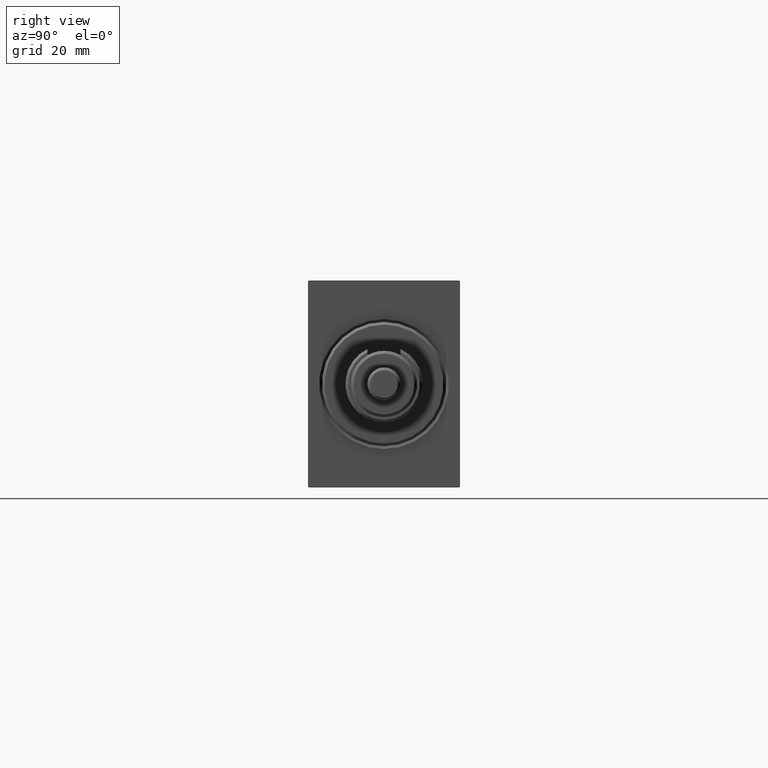
[diagram: clean part render]
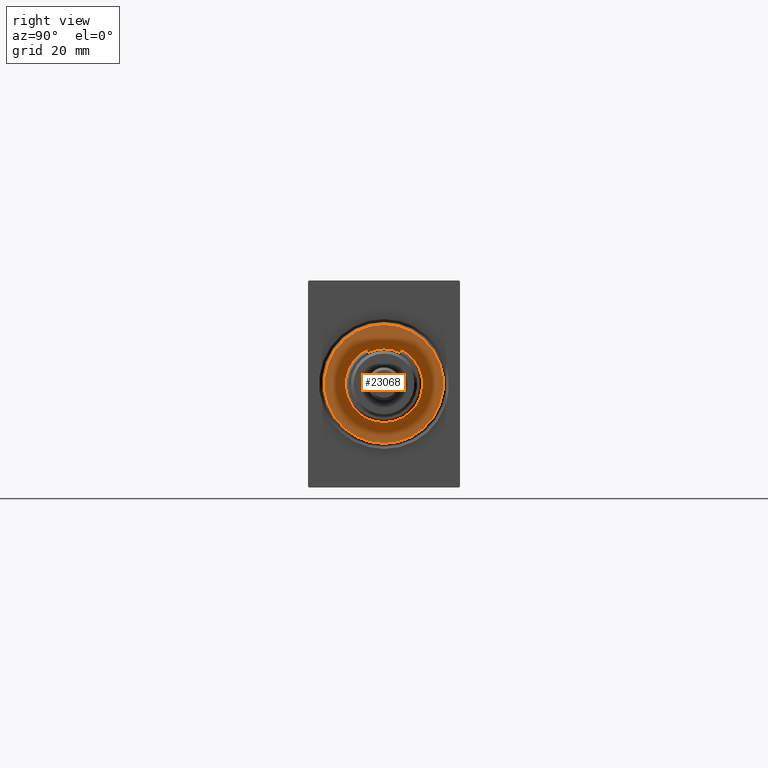
[diagram: same view with one face highlighted and labeled with its STEP entity id]
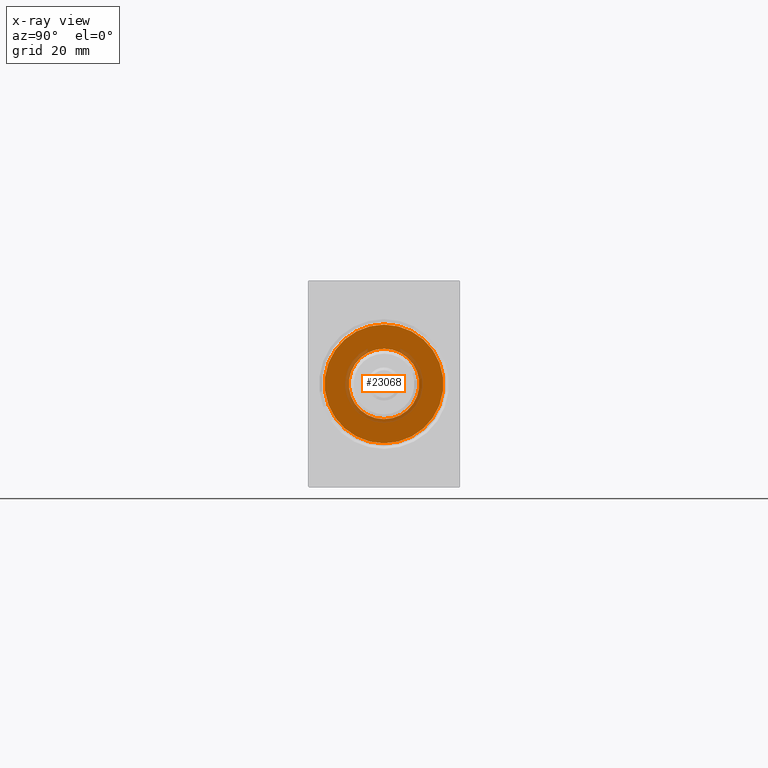
[diagram: x-ray of the same camera — body ghosted, the highlighted face saturated]
A machine part, right view. The second image highlights one B-rep face of the part: STEP entity #23068.
The next image is the same camera in x-ray: the body ghosted, the highlighted face saturated — about 9% of this face is hidden behind the body in this view.
In plain terms, the highlighted planar face has unit normal (1, 0, 0).
Its self-contained STEP definition (entity closure, byte-faithful):
#876 = EDGE_CURVE ( 'NONE', #2817, #26963, #32642, .T. ) ;
#2817 = VERTEX_POINT ( 'NONE', #8684 ) ;
#3349 = AXIS2_PLACEMENT_3D ( 'NONE', #24300, #45081, #38400 ) ;
#5936 = DIRECTION ( 'NONE',  ( 0.000000000000000000, 0.000000000000000000, -1.000000000000000000 ) ) ;
#6956 = CIRCLE ( 'NONE', #35713, 12.75000000000000000 ) ;
#7460 = EDGE_CURVE ( 'NONE', #28525, #31789, #6956, .T. ) ;
#8570 = EDGE_LOOP ( 'NONE', ( #17446, #38001 ) ) ;
#8684 = CARTESIAN_POINT ( 'NONE',  ( 3.000000000000000000, 2.694222958124177204E-15, -21.50000000000000000 ) ) ;
#9240 = CIRCLE ( 'NONE', #3349, 12.75000000000000000 ) ;
#10669 = ORIENTED_EDGE ( 'NONE', *, *, #20866, .T. ) ;
#13084 = DIRECTION ( 'NONE',  ( -1.000000000000000000, 0.000000000000000000, -0.000000000000000000 ) ) ;
#13702 = EDGE_CURVE ( 'NONE', #31789, #28525, #9240, .T. ) ;
#17446 = ORIENTED_EDGE ( 'NONE', *, *, #7460, .T. ) ;
#19613 = FACE_OUTER_BOUND ( 'NONE', #28814, .T. ) ;
#20064 = DIRECTION ( 'NONE',  ( 0.000000000000000000, 0.000000000000000000, -1.000000000000000000 ) ) ;
#20734 = CARTESIAN_POINT ( 'NONE',  ( 3.000000000000000000, 0.000000000000000000, 0.000000000000000000 ) ) ;
#20866 = EDGE_CURVE ( 'NONE', #26963, #2817, #25653, .T. ) ;
#23068 = ADVANCED_FACE ( 'NONE', ( #19613, #23972 ), #37622, .T. ) ;
#23437 = AXIS2_PLACEMENT_3D ( 'NONE', #38509, #45187, #34363 ) ;
#23972 = FACE_BOUND ( 'NONE', #8570, .T. ) ;
#24300 = CARTESIAN_POINT ( 'NONE',  ( 3.000000000000000000, 0.000000000000000000, 0.000000000000000000 ) ) ;
#25653 = CIRCLE ( 'NONE', #23437, 21.50000000000000000 ) ;
#25769 = CARTESIAN_POINT ( 'NONE',  ( 3.000000000000000000, 0.000000000000000000, 21.50000000000000000 ) ) ;
#25815 = DIRECTION ( 'NONE',  ( 1.000000000000000000, -0.000000000000000000, 0.000000000000000000 ) ) ;
#26963 = VERTEX_POINT ( 'NONE', #25769 ) ;
#27170 = CARTESIAN_POINT ( 'NONE',  ( 3.000000000000000000, 0.000000000000000000, 0.000000000000000000 ) ) ;
#28525 = VERTEX_POINT ( 'NONE', #28904 ) ;
#28687 = AXIS2_PLACEMENT_3D ( 'NONE', #20734, #37847, #20064 ) ;
#28814 = EDGE_LOOP ( 'NONE', ( #10669, #33144 ) ) ;
#28904 = CARTESIAN_POINT ( 'NONE',  ( 3.000000000000000000, 0.000000000000000000, 12.75000000000000000 ) ) ;
#28939 = AXIS2_PLACEMENT_3D ( 'NONE', #29284, #25815, #32073 ) ;
#29284 = CARTESIAN_POINT ( 'NONE',  ( 3.000000000000000000, 0.000000000000000000, 0.000000000000000000 ) ) ;
#31789 = VERTEX_POINT ( 'NONE', #35641 ) ;
#32073 = DIRECTION ( 'NONE',  ( 0.000000000000000000, 0.000000000000000000, -1.000000000000000000 ) ) ;
#32642 = CIRCLE ( 'NONE', #28939, 21.50000000000000000 ) ;
#33144 = ORIENTED_EDGE ( 'NONE', *, *, #876, .T. ) ;
#34363 = DIRECTION ( 'NONE',  ( 0.000000000000000000, 0.000000000000000000, -1.000000000000000000 ) ) ;
#35641 = CARTESIAN_POINT ( 'NONE',  ( 3.000000000000000000, 1.561424668912874914E-15, -12.75000000000000000 ) ) ;
#35713 = AXIS2_PLACEMENT_3D ( 'NONE', #27170, #13084, #5936 ) ;
#37622 = PLANE ( 'NONE',  #28687 ) ;
#37847 = DIRECTION ( 'NONE',  ( 1.000000000000000000, -0.000000000000000000, 0.000000000000000000 ) ) ;
#38001 = ORIENTED_EDGE ( 'NONE', *, *, #13702, .T. ) ;
#38400 = DIRECTION ( 'NONE',  ( 0.000000000000000000, 0.000000000000000000, -1.000000000000000000 ) ) ;
#38509 = CARTESIAN_POINT ( 'NONE',  ( 3.000000000000000000, 0.000000000000000000, 0.000000000000000000 ) ) ;
#45081 = DIRECTION ( 'NONE',  ( -1.000000000000000000, 0.000000000000000000, -0.000000000000000000 ) ) ;
#45187 = DIRECTION ( 'NONE',  ( 1.000000000000000000, -0.000000000000000000, 0.000000000000000000 ) ) ;